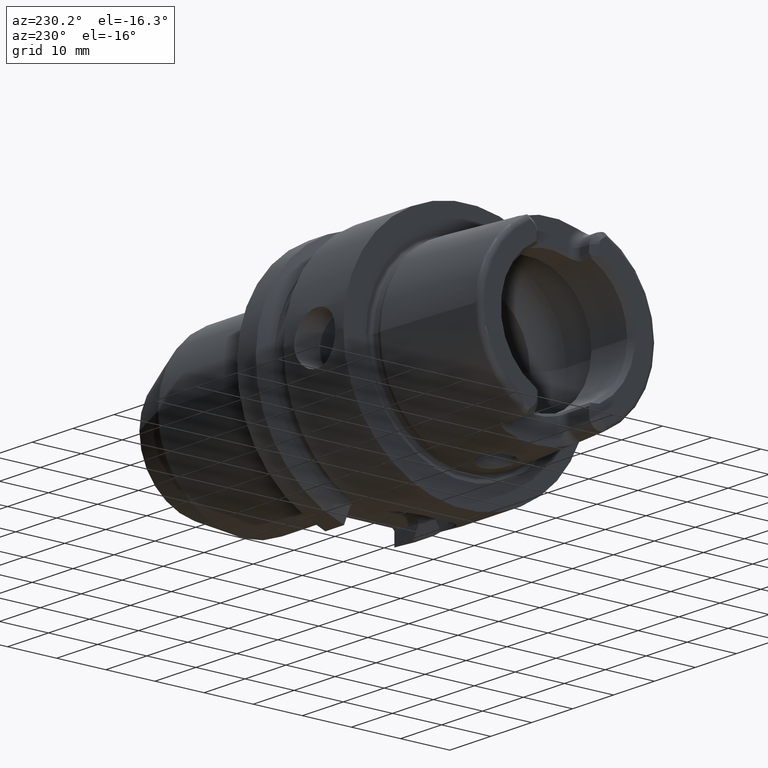
[diagram: clean part render]
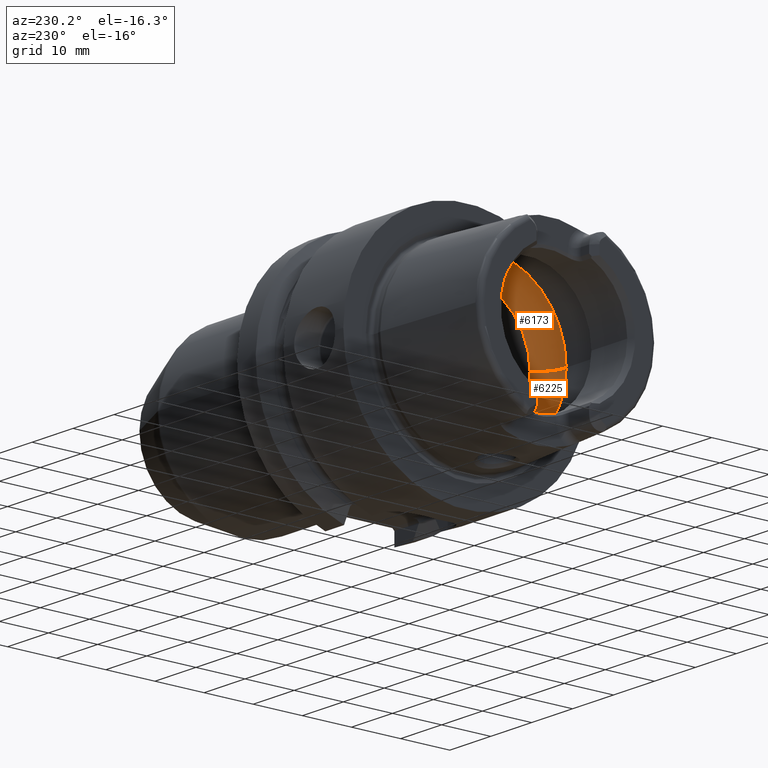
[diagram: same view with one multi-face feature highlighted, each face labeled with its STEP entity id]
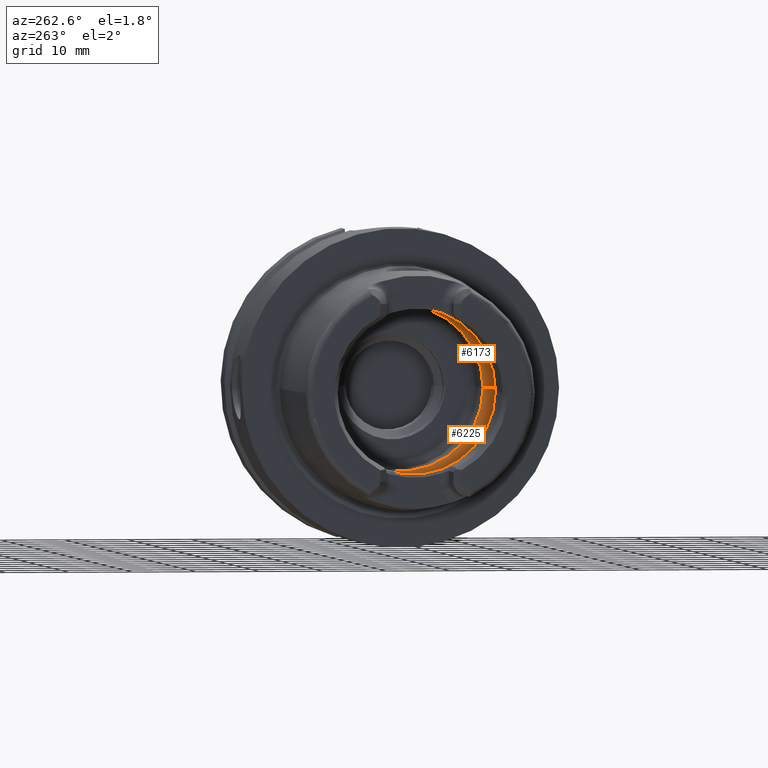
[diagram: same view with one multi-face feature highlighted, each face labeled with its STEP entity id]
A machine part, auxiliary view. The highlighted faces form ONE feature: a constant-radius fillet chain: 2 tangent blend faces with common blend radius 6 mm. The faces share edges in the B-rep.
A second angle (auxiliary view) of the same feature is appended — it is thin or edge-on in the first view.
Their STEP definitions:
[1] entity #6173 (Torus):
#2333=CARTESIAN_POINT('',(-4.5E0,0.E0,1.599819131363E1));
#2334=CARTESIAN_POINT('',(-4.5E0,1.393933285662E-1,1.599819131363E1));
#2335=CARTESIAN_POINT('',(-4.519404191081E0,4.194544956419E-1,
1.599688659151E1));
#2336=CARTESIAN_POINT('',(-4.608514252748E0,8.368427430076E-1,
1.599033330284E1));
#2337=CARTESIAN_POINT('',(-4.756111350291E0,1.237284710770E0,1.597758887261E1));
#2338=CARTESIAN_POINT('',(-4.955426617124E0,1.607186531253E0,1.595666056940E1));
#2339=CARTESIAN_POINT('',(-5.118862175482E0,1.829998924173E0,1.593561410958E1));
#2340=CARTESIAN_POINT('',(-5.207075858867E0,1.934553923521E0,1.592291120106E1));
#2342=CARTESIAN_POINT('',(-5.207075858867E0,-1.934553923521E0,
1.592291120106E1));
#2343=CARTESIAN_POINT('',(-5.118900024865E0,-1.830043785039E0,
1.593560865920E1));
#2344=CARTESIAN_POINT('',(-4.955463769315E0,-1.607278697505E0,
1.595665773659E1));
#2345=CARTESIAN_POINT('',(-4.755897029316E0,-1.236851245102E0,
1.597761021240E1));
#2346=CARTESIAN_POINT('',(-4.608377605542E0,-8.363601809663E-1,
1.599034363703E1));
#2347=CARTESIAN_POINT('',(-4.519347393058E0,-4.189919635640E-1,
1.599689053867E1));
#2348=CARTESIAN_POINT('',(-4.5E0,-1.392080742489E-1,1.599819131363E1));
#2349=CARTESIAN_POINT('',(-4.5E0,0.E0,1.599819131363E1));
#2351=CARTESIAN_POINT('',(0.E0,0.E0,0.E0));
#2352=DIRECTION('',(1.E0,0.E0,0.E0));
#2353=DIRECTION('',(0.E0,1.E0,0.E0));
#2354=AXIS2_PLACEMENT_3D('',#2351,#2352,#2353);
#2375=CARTESIAN_POINT('',(-5.207075858867E0,0.E0,0.E0));
#2376=DIRECTION('',(1.E0,0.E0,0.E0));
#2377=DIRECTION('',(0.E0,1.E0,0.E0));
#2378=AXIS2_PLACEMENT_3D('',#2375,#2376,#2377);
#2380=CARTESIAN_POINT('',(-5.207075858867E0,0.E0,0.E0));
#2381=DIRECTION('',(1.E0,0.E0,0.E0));
#2382=DIRECTION('',(0.E0,-1.206080999702E-1,9.927001995676E-1));
#2383=AXIS2_PLACEMENT_3D('',#2380,#2381,#2382);
#2469=CARTESIAN_POINT('',(-5.207075858867E0,1.004E1,0.E0));
#2470=DIRECTION('',(0.E0,0.E0,1.E0));
#2471=DIRECTION('',(8.678459764779E-1,4.968333333333E-1,0.E0));
#2472=AXIS2_PLACEMENT_3D('',#2469,#2470,#2471);
#2479=CARTESIAN_POINT('',(-5.207075858867E0,-1.004E1,0.E0));
#2480=DIRECTION('',(0.E0,0.E0,-1.E0));
#2481=DIRECTION('',(8.678459764779E-1,-4.968333333333E-1,0.E0));
#2482=AXIS2_PLACEMENT_3D('',#2479,#2480,#2481);
#3277=CARTESIAN_POINT('',(-4.5E0,0.E0,1.599819131363E1));
#3278=VERTEX_POINT('',#3277);
#3299=CARTESIAN_POINT('',(0.E0,1.3021E1,0.E0));
#3300=VERTEX_POINT('',#3299);
#3301=CARTESIAN_POINT('',(-5.207075858867E0,1.604E1,0.E0));
#3302=VERTEX_POINT('',#3301);
#3311=CARTESIAN_POINT('',(0.E0,-1.3021E1,0.E0));
#3312=VERTEX_POINT('',#3311);
#3313=CARTESIAN_POINT('',(-5.207075858867E0,-1.604E1,0.E0));
#3314=VERTEX_POINT('',#3313);
#3331=VERTEX_POINT('',#2340);
#3332=VERTEX_POINT('',#2342);
#6154=CARTESIAN_POINT('',(-5.207075858867E0,0.E0,0.E0));
#6155=DIRECTION('',(1.E0,0.E0,0.E0));
#6156=DIRECTION('',(0.E0,-1.E0,0.E0));
#6157=AXIS2_PLACEMENT_3D('',#6154,#6155,#6156);
#6158=TOROIDAL_SURFACE('',#6157,1.004E1,6.E0);
#6159=ORIENTED_EDGE('',*,*,#6131,.F.);
#6160=ORIENTED_EDGE('',*,*,#5905,.F.);
#6162=ORIENTED_EDGE('',*,*,#6161,.T.);
#6164=ORIENTED_EDGE('',*,*,#6163,.F.);
#6166=ORIENTED_EDGE('',*,*,#6165,.F.);
#6168=ORIENTED_EDGE('',*,*,#6167,.T.);
#6170=ORIENTED_EDGE('',*,*,#6169,.T.);
#6171=EDGE_LOOP('',(#6159,#6160,#6162,#6164,#6166,#6168,#6170));
#6172=FACE_OUTER_BOUND('',#6171,.F.);
#6173=ADVANCED_FACE('',(#6172),#6158,.F.);
#2341=B_SPLINE_CURVE_WITH_KNOTS('',3,(#2333,#2334,#2335,#2336,#2337,#2338,#2339,
#2340),.UNSPECIFIED.,.F.,.F.,(4,1,1,1,1,4),(0.E0,2.E-1,4.E-1,6.E-1,8.E-1,1.E0),
.UNSPECIFIED.);
#2350=B_SPLINE_CURVE_WITH_KNOTS('',3,(#2342,#2343,#2344,#2345,#2346,#2347,#2348,
#2349),.UNSPECIFIED.,.F.,.F.,(4,1,1,1,1,4),(0.E0,2.E-1,4.E-1,6.E-1,8.E-1,1.E0),
.UNSPECIFIED.);
#2355=CIRCLE('',#2354,1.3021E1);
#2379=CIRCLE('',#2378,1.604E1);
#2384=CIRCLE('',#2383,1.604E1);
#2473=CIRCLE('',#2472,6.E0);
#2483=CIRCLE('',#2482,6.E0);
#5905=EDGE_CURVE('',#3332,#3278,#2350,.T.);
#6131=EDGE_CURVE('',#3278,#3331,#2341,.T.);
#6161=EDGE_CURVE('',#3332,#3314,#2384,.T.);
#6163=EDGE_CURVE('',#3312,#3314,#2483,.T.);
#6165=EDGE_CURVE('',#3300,#3312,#2355,.T.);
#6167=EDGE_CURVE('',#3300,#3302,#2473,.T.);
#6169=EDGE_CURVE('',#3302,#3331,#2379,.T.);
[2] entity #6225 (Torus):
#2442=CARTESIAN_POINT('',(-5.207075858867E0,0.E0,0.E0));
#2443=DIRECTION('',(-1.E0,0.E0,0.E0));
#2444=DIRECTION('',(0.E0,-1.206080999702E-1,-9.927001995676E-1));
#2445=AXIS2_PLACEMENT_3D('',#2442,#2443,#2444);
#2455=CARTESIAN_POINT('',(-5.207075858867E0,0.E0,0.E0));
#2456=DIRECTION('',(-1.E0,0.E0,0.E0));
#2457=DIRECTION('',(0.E0,1.E0,0.E0));
#2458=AXIS2_PLACEMENT_3D('',#2455,#2456,#2457);
#2460=CARTESIAN_POINT('',(-5.207075858867E0,1.934553923521E0,
-1.592291120106E1));
#2461=CARTESIAN_POINT('',(-5.118824210050E0,1.829953925761E0,
-1.593561957666E1));
#2462=CARTESIAN_POINT('',(-4.955339216306E0,1.607057846558E0,
-1.595667111021E1));
#2463=CARTESIAN_POINT('',(-4.756013687200E0,1.237072947635E0,
-1.597759816412E1));
#2464=CARTESIAN_POINT('',(-4.608446533562E0,8.366068361804E-1,
-1.599033856812E1));
#2465=CARTESIAN_POINT('',(-4.519381773364E0,4.192588342496E-1,
-1.599688809406E1));
#2466=CARTESIAN_POINT('',(-4.5E0,1.393160811055E-1,-1.599819131363E1));
#2467=CARTESIAN_POINT('',(-4.5E0,0.E0,-1.599819131363E1));
#2469=CARTESIAN_POINT('',(-5.207075858867E0,1.004E1,0.E0));
#2470=DIRECTION('',(0.E0,0.E0,1.E0));
#2471=DIRECTION('',(8.678459764779E-1,4.968333333333E-1,0.E0));
#2472=AXIS2_PLACEMENT_3D('',#2469,#2470,#2471);
#2474=CARTESIAN_POINT('',(0.E0,0.E0,0.E0));
#2475=DIRECTION('',(-1.E0,0.E0,0.E0));
#2476=DIRECTION('',(0.E0,1.E0,0.E0));
#2477=AXIS2_PLACEMENT_3D('',#2474,#2475,#2476);
#2479=CARTESIAN_POINT('',(-5.207075858867E0,-1.004E1,0.E0));
#2480=DIRECTION('',(0.E0,0.E0,-1.E0));
#2481=DIRECTION('',(8.678459764779E-1,-4.968333333333E-1,0.E0));
#2482=AXIS2_PLACEMENT_3D('',#2479,#2480,#2481);
#2484=CARTESIAN_POINT('',(-4.5E0,0.E0,-1.599819131363E1));
#2485=CARTESIAN_POINT('',(-4.5E0,-1.392836551494E-1,-1.599819131363E1));
#2486=CARTESIAN_POINT('',(-4.519369128421E0,-4.191839914949E-1,
-1.599688908511E1));
#2487=CARTESIAN_POINT('',(-4.608445858898E0,-8.365987177972E-1,
-1.599033833422E1));
#2488=CARTESIAN_POINT('',(-4.755995653741E0,-1.237064902814E0,
-1.597760082811E1));
#2489=CARTESIAN_POINT('',(-4.955551470065E0,-1.607407742941E0,
-1.595664715424E1));
#2490=CARTESIAN_POINT('',(-5.118938063898E0,-1.830088870687E0,
-1.593560318152E1));
#2491=CARTESIAN_POINT('',(-5.207075858867E0,-1.934553923521E0,
-1.592291120106E1));
#3285=CARTESIAN_POINT('',(-4.5E0,0.E0,-1.599819131363E1));
#3286=VERTEX_POINT('',#3285);
#3299=CARTESIAN_POINT('',(0.E0,1.3021E1,0.E0));
#3300=VERTEX_POINT('',#3299);
#3301=CARTESIAN_POINT('',(-5.207075858867E0,1.604E1,0.E0));
#3302=VERTEX_POINT('',#3301);
#3311=CARTESIAN_POINT('',(0.E0,-1.3021E1,0.E0));
#3312=VERTEX_POINT('',#3311);
#3313=CARTESIAN_POINT('',(-5.207075858867E0,-1.604E1,0.E0));
#3314=VERTEX_POINT('',#3313);
#3333=VERTEX_POINT('',#2460);
#3334=VERTEX_POINT('',#2491);
#6210=CARTESIAN_POINT('',(-5.207075858867E0,0.E0,0.E0));
#6211=DIRECTION('',(1.E0,0.E0,0.E0));
#6212=DIRECTION('',(0.E0,-1.E0,0.E0));
#6213=AXIS2_PLACEMENT_3D('',#6210,#6211,#6212);
#6214=TOROIDAL_SURFACE('',#6213,1.004E1,6.E0);
#6215=ORIENTED_EDGE('',*,*,#6148,.F.);
#6216=ORIENTED_EDGE('',*,*,#6205,.F.);
#6217=ORIENTED_EDGE('',*,*,#6167,.F.);
#6219=ORIENTED_EDGE('',*,*,#6218,.T.);
#6220=ORIENTED_EDGE('',*,*,#6163,.T.);
#6221=ORIENTED_EDGE('',*,*,#6199,.F.);
#6222=ORIENTED_EDGE('',*,*,#5920,.F.);
#6223=EDGE_LOOP('',(#6215,#6216,#6217,#6219,#6220,#6221,#6222));
#6224=FACE_OUTER_BOUND('',#6223,.F.);
#6225=ADVANCED_FACE('',(#6224),#6214,.F.);
#2446=CIRCLE('',#2445,1.604E1);
#2459=CIRCLE('',#2458,1.604E1);
#2468=B_SPLINE_CURVE_WITH_KNOTS('',3,(#2460,#2461,#2462,#2463,#2464,#2465,#2466,
#2467),.UNSPECIFIED.,.F.,.F.,(4,1,1,1,1,4),(0.E0,2.E-1,4.E-1,6.E-1,8.E-1,1.E0),
.UNSPECIFIED.);
#2473=CIRCLE('',#2472,6.E0);
#2478=CIRCLE('',#2477,1.3021E1);
#2483=CIRCLE('',#2482,6.E0);
#2492=B_SPLINE_CURVE_WITH_KNOTS('',3,(#2484,#2485,#2486,#2487,#2488,#2489,#2490,
#2491),.UNSPECIFIED.,.F.,.F.,(4,1,1,1,1,4),(0.E0,2.E-1,4.E-1,6.E-1,8.E-1,1.E0),
.UNSPECIFIED.);
#5920=EDGE_CURVE('',#3286,#3334,#2492,.T.);
#6148=EDGE_CURVE('',#3333,#3286,#2468,.T.);
#6163=EDGE_CURVE('',#3312,#3314,#2483,.T.);
#6167=EDGE_CURVE('',#3300,#3302,#2473,.T.);
#6199=EDGE_CURVE('',#3334,#3314,#2446,.T.);
#6205=EDGE_CURVE('',#3302,#3333,#2459,.T.);
#6218=EDGE_CURVE('',#3300,#3312,#2478,.T.);